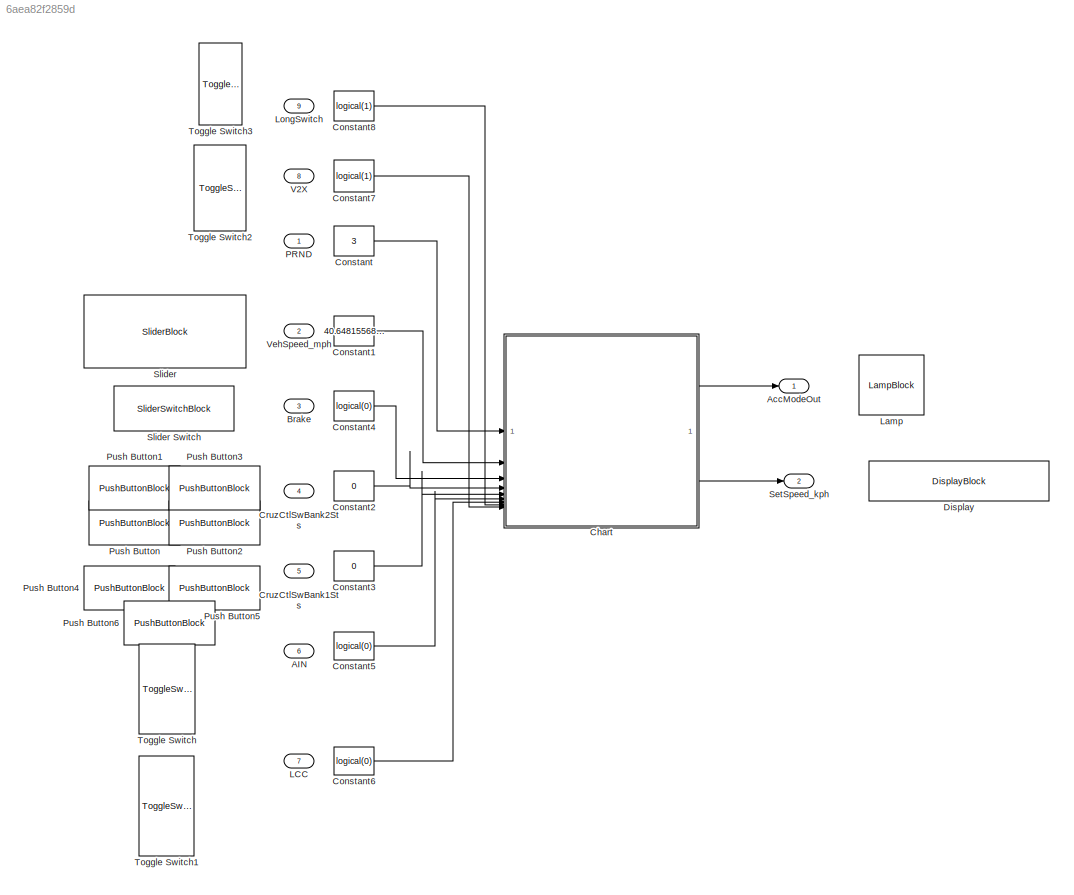
MODEL slx_6aea82f2859d
KIND model
CONFIG AbsTol = auto
CONFIG EnableMultiTasking = off
CONFIG FixedStep = auto
CONFIG MaxStep = auto
CONFIG MinStep = auto
CONFIG RelTol = 1e-3
CONFIG SampleTimeConstraint = Unconstrained
CONFIG SolverName = VariableStepAuto
CONFIG StartTime = 0.0
CONFIG StopTime = 10.0
BLOCK [Inport] AIN
  Port = 6
BLOCK [Outport] AccModeOut
BLOCK [Inport] Brake
  Port = 3
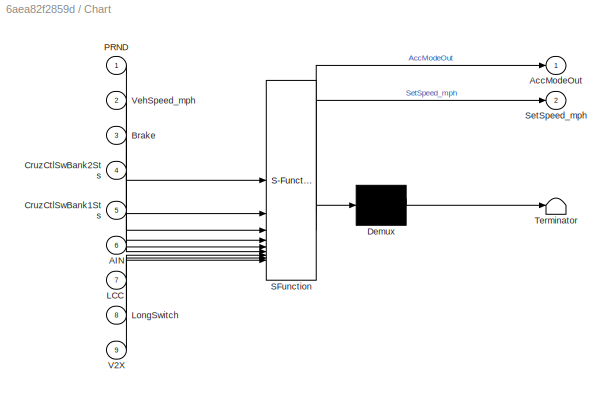
BLOCK [SubSystem] Chart
  ErrorFcn = Stateflow.Translate.translate
  PermitHierarchicalResolution = ExplicitOnly
  PortSchema = {"entries":[{"content":{"sides":[{"content":{"connectorIds":["In8","In9","In1","In2","In3","In4","In5","In6","In7"]},"type":"ConnectorPlacement.EquallySpacedRectSide","uuid":"e85dcfe6-766c-482d-aa65-e7bbb4e3e1c4"},{"content":{"connectorIds":["Out1","Out2"],"side":"RIGHT"},"type":"ConnectorPlacement.EquallySpacedRectSide","uuid":"3867670f-d709-4b15-a3fa-6089a5f96600"},{"content":{"side":"TOP"},"typ...<+277ch>
  SFBlockType = Chart
  TreatAsAtomicUnit = on
BLOCK [Demux] Chart/ Demux 
  Outputs = 1
BLOCK [S-Function] Chart/ SFunction 
  EnableBusSupport = off
  FunctionName = sf_sfun
  PortCounts = [9 3]
  SFcnIsStateOwnerBlock = off
  SFunctionDeploymentMode = off
  Tag = Stateflow S-Function 1
BLOCK [Terminator] Chart/ Terminator 
BLOCK [Inport] Chart/AIN
  Port = 6
BLOCK [Outport] Chart/AccModeOut
BLOCK [Inport] Chart/Brake
  Port = 3
BLOCK [Inport] Chart/CruzCtlSwBank1Sts
  Port = 5
BLOCK [Inport] Chart/CruzCtlSwBank2Sts
  Port = 4
BLOCK [Inport] Chart/LCC
  Port = 7
BLOCK [Inport] Chart/LongSwitch
  Port = 8
BLOCK [Inport] Chart/PRND
BLOCK [Outport] Chart/SetSpeed_mph
  Port = 2
BLOCK [Inport] Chart/V2X
  Port = 9
BLOCK [Inport] Chart/VehSpeed_mph
  Port = 2
BLOCK [Constant] Constant
  Value = 3
BLOCK [Constant] Constant1
  Value = 40.64815568764759
BLOCK [Constant] Constant2
  Value = 0
BLOCK [Constant] Constant3
  Value = 0
BLOCK [Constant] Constant4
  OutDataTypeStr = boolean
  Value = logical(0)
BLOCK [Constant] Constant5
  OutDataTypeStr = boolean
  Value = logical(0)
BLOCK [Constant] Constant6
  OutDataTypeStr = boolean
  Value = logical(0)
BLOCK [Constant] Constant7
  OutDataTypeStr = boolean
  Value = logical(1)
BLOCK [Constant] Constant8
  OutDataTypeStr = boolean
  Value = logical(1)
BLOCK [Inport] CruzCtlSwBank1Sts
  Port = 5
BLOCK [Inport] CruzCtlSwBank2Sts
  Port = 4
BLOCK [DisplayBlock] Display
  Format = Integer
  LabelPosition = Hide
  Transparency = 1
BLOCK [Inport] LCC
  Port = 7
BLOCK [LampBlock] Lamp
  LabelPosition = Hide
BLOCK [Inport] LongSwitch
  Port = 9
BLOCK [Inport] PRND
BLOCK [PushButtonBlock] Push Button
  ButtonText = SetShort
  OffValue = 0.000000
BLOCK [PushButtonBlock] Push Button1
  ButtonText = ResumeShort
  OffValue = 0.000000
  OnValue = 2
BLOCK [PushButtonBlock] Push Button2
  ButtonText = DecHigh
  OffValue = 0.000000
  OnValue = 3
BLOCK [PushButtonBlock] Push Button3
  ButtonText = IncHigh
  OffValue = 0.000000
  OnValue = 4
BLOCK [PushButtonBlock] Push Button4
  ButtonText = Off
  ButtonType = Latch
  OffValue = 2.000000
  OnValue = 0
BLOCK [PushButtonBlock] Push Button5
  ButtonText = On
  ButtonType = Latch
  OffValue = 0.000000
BLOCK [PushButtonBlock] Push Button6
  ButtonText = Cancel
  ButtonType = Latch
  OffValue = 1.000000
  OnValue = 2
BLOCK [Outport] SetSpeed_kph
  Port = 2
BLOCK [SliderBlock] Slider
BLOCK [SliderSwitchBlock] Slider Switch
BLOCK [ToggleSwitchBlock] Toggle Switch
BLOCK [ToggleSwitchBlock] Toggle Switch1
BLOCK [ToggleSwitchBlock] Toggle Switch2
BLOCK [ToggleSwitchBlock] Toggle Switch3
BLOCK [Inport] V2X
  Port = 8
BLOCK [Inport] VehSpeed_mph
  Port = 2
LINE Chart:1 -> AccModeOut:1
LINE Chart:2 -> SetSpeed_kph:1
LINE Constant1:1 -> Chart:2
LINE Constant2:1 -> Chart:4
LINE Constant3:1 -> Chart:5
LINE Constant4:1 -> Chart:3
LINE Constant5:1 -> Chart:6
LINE Constant6:1 -> Chart:7
LINE Constant7:1 -> Chart:9
LINE Constant8:1 -> Chart:8
LINE Constant:1 -> Chart:1
CHART Test Sequence states=3 transitions=6
  STATE_LABEL 'Run\n\n%% Initialize data outputs.\nPRND = 0;\nVehSpeed_kph = 0;\nCruzCtlSwBank2Sts = 0;\nCruzCtlSwBank1Sts = 0;'
  STATE_LABEL 'step_1'
  STATE_LABEL 'step_2'
CHART Chart states=4 transitions=11
  STATE_LABEL 'ok = precondsOK(SteeringInput, Speed, isBraking, AIN_Active, LCC_Active)'
  STATE_LABEL 'SCRIPT:\nfunction ok = precondsOK(SteeringInput, Speed, isBraking, AIN_Active, LCC_Active)\n%#codegen\n\n    % --- Determine allowable maximum speed ---\n    % Default max speed (normal ACC)\n    maxSpeed = 65;\n\n    % If AIN is active, reduce to 55\n    if AIN_Active\n        maxSpeed = 55;\n    end\n\n    % If LCC is active, reduce even further to 35 (overrides AIN)\n    if LCC_Active\n        maxSpeed = 35;\n...<+192ch>'
  STATE_LABEL 'Armed\nentry:\nAccModeOut = AccModeType.ACC_Armed;'
  STATE_LABEL 'Off\nentry:\nAccModeOut = AccModeType.ACC_Off;'
  STATE_LABEL 'Engaged\nentry:\nAccModeOut = AccModeType.ACC_Engaged;\n'
CHART  states=0 transitions=0
